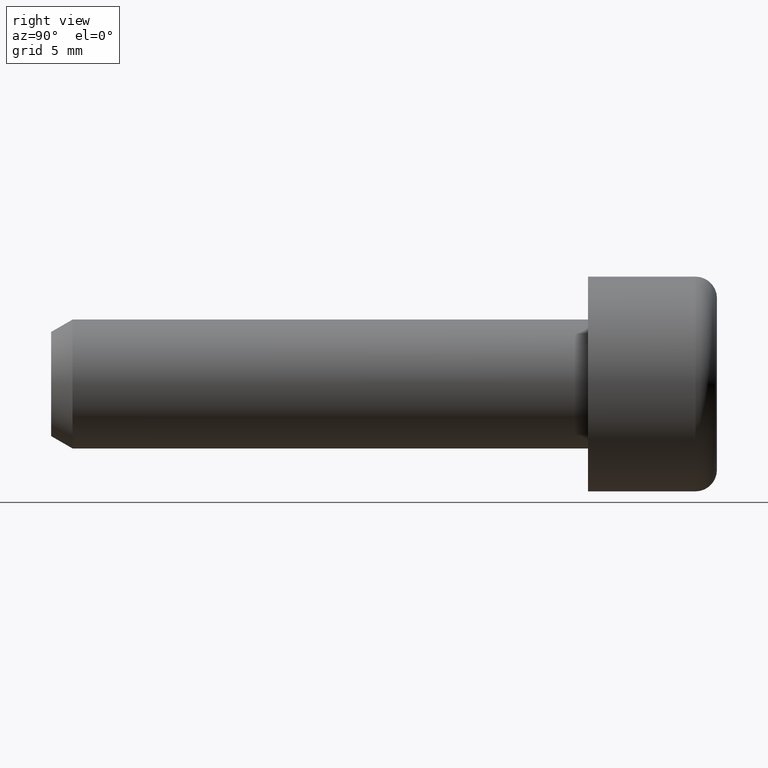
[diagram: clean part render]
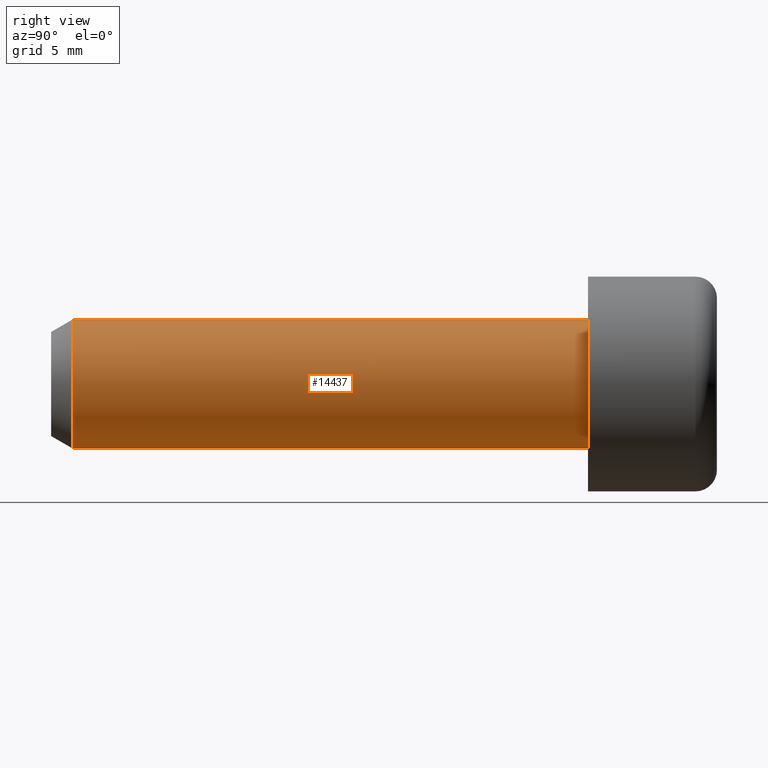
[diagram: same view with one face highlighted and labeled with its STEP entity id]
A machine part, right view. The second image highlights one B-rep face of the part: STEP entity #14437.
In plain terms, the highlighted cylindrical surface (partial cylindrical patch) has radius 3 mm, axis along (-0, 1, -0).
Its self-contained STEP definition (entity closure, byte-faithful):
#1029 = VECTOR ( 'NONE', #8038, 1000.000000000000000 ) ;
#1614 = DIRECTION ( 'NONE',  ( -0.000000000000000000, -1.000000000000000000, -0.000000000000000000 ) ) ;
#2397 = VERTEX_POINT ( 'NONE', #9483 ) ;
#2411 = EDGE_CURVE ( 'NONE', #3885, #4233, #14657, .T. ) ;
#2423 = CARTESIAN_POINT ( 'NONE',  ( 3.673940397442060361E-16, 0.000000000000000000, -3.000000000000000444 ) ) ;
#2616 = VERTEX_POINT ( 'NONE', #18001 ) ;
#2949 = CARTESIAN_POINT ( 'NONE',  ( 3.673940397442060361E-16, -24.00000000000000355, -3.000000000000000444 ) ) ;
#3581 = DIRECTION ( 'NONE',  ( -0.000000000000000000, 1.000000000000000000, -0.000000000000000000 ) ) ;
#3700 = CYLINDRICAL_SURFACE ( 'NONE', #4053, 3.000000000000000444 ) ;
#3878 = ORIENTED_EDGE ( 'NONE', *, *, #2411, .T. ) ;
#3885 = VERTEX_POINT ( 'NONE', #2949 ) ;
#4053 = AXIS2_PLACEMENT_3D ( 'NONE', #4911, #3581, #10742 ) ;
#4233 = VERTEX_POINT ( 'NONE', #2423 ) ;
#4579 = ORIENTED_EDGE ( 'NONE', *, *, #10639, .T. ) ;
#4630 = FACE_OUTER_BOUND ( 'NONE', #8872, .T. ) ;
#4911 = CARTESIAN_POINT ( 'NONE',  ( 0.000000000000000000, -25.00000000000000000, 0.000000000000000000 ) ) ;
#5991 = LINE ( 'NONE', #18125, #1029 ) ;
#6343 = DIRECTION ( 'NONE',  ( 0.000000000000000000, 0.000000000000000000, -1.000000000000000000 ) ) ;
#7296 = DIRECTION ( 'NONE',  ( 0.000000000000000000, 0.000000000000000000, 1.000000000000000000 ) ) ;
#7689 = ORIENTED_EDGE ( 'NONE', *, *, #15292, .T. ) ;
#7714 = ORIENTED_EDGE ( 'NONE', *, *, #15436, .F. ) ;
#8038 = DIRECTION ( 'NONE',  ( -0.000000000000000000, 1.000000000000000000, -0.000000000000000000 ) ) ;
#8872 = EDGE_LOOP ( 'NONE', ( #7689, #3878, #4579, #7714 ) ) ;
#8926 = AXIS2_PLACEMENT_3D ( 'NONE', #13367, #9132, #6343 ) ;
#9132 = DIRECTION ( 'NONE',  ( 0.000000000000000000, 1.000000000000000000, 0.000000000000000000 ) ) ;
#9246 = CARTESIAN_POINT ( 'NONE',  ( 3.673940397442060361E-16, -25.00000000000000000, -3.000000000000000444 ) ) ;
#9483 = CARTESIAN_POINT ( 'NONE',  ( 0.000000000000000000, 0.000000000000000000, 3.000000000000000444 ) ) ;
#10313 = CARTESIAN_POINT ( 'NONE',  ( 0.000000000000000000, 0.000000000000000000, 0.000000000000000000 ) ) ;
#10639 = EDGE_CURVE ( 'NONE', #4233, #2397, #14783, .T. ) ;
#10728 = CIRCLE ( 'NONE', #8926, 3.000000000000000444 ) ;
#10742 = DIRECTION ( 'NONE',  ( 0.000000000000000000, 0.000000000000000000, 1.000000000000000000 ) ) ;
#11172 = AXIS2_PLACEMENT_3D ( 'NONE', #10313, #1614, #7296 ) ;
#12011 = VECTOR ( 'NONE', #17883, 1000.000000000000000 ) ;
#13367 = CARTESIAN_POINT ( 'NONE',  ( 0.000000000000000000, -24.00000000000000355, 0.000000000000000000 ) ) ;
#14437 = ADVANCED_FACE ( 'NONE', ( #4630 ), #3700, .T. ) ;
#14657 = LINE ( 'NONE', #9246, #12011 ) ;
#14783 = CIRCLE ( 'NONE', #11172, 3.000000000000000444 ) ;
#15292 = EDGE_CURVE ( 'NONE', #2616, #3885, #10728, .T. ) ;
#15436 = EDGE_CURVE ( 'NONE', #2616, #2397, #5991, .T. ) ;
#17883 = DIRECTION ( 'NONE',  ( -0.000000000000000000, 1.000000000000000000, -0.000000000000000000 ) ) ;
#18001 = CARTESIAN_POINT ( 'NONE',  ( 0.000000000000000000, -24.00000000000000355, 3.000000000000000444 ) ) ;
#18125 = CARTESIAN_POINT ( 'NONE',  ( 0.000000000000000000, -25.00000000000000000, 3.000000000000000444 ) ) ;